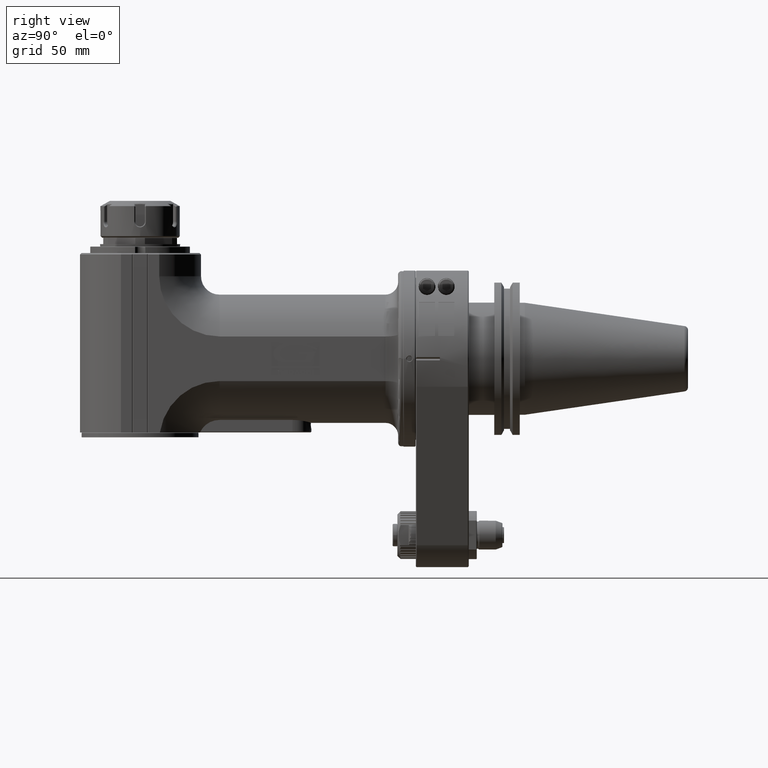
[diagram: clean part render]
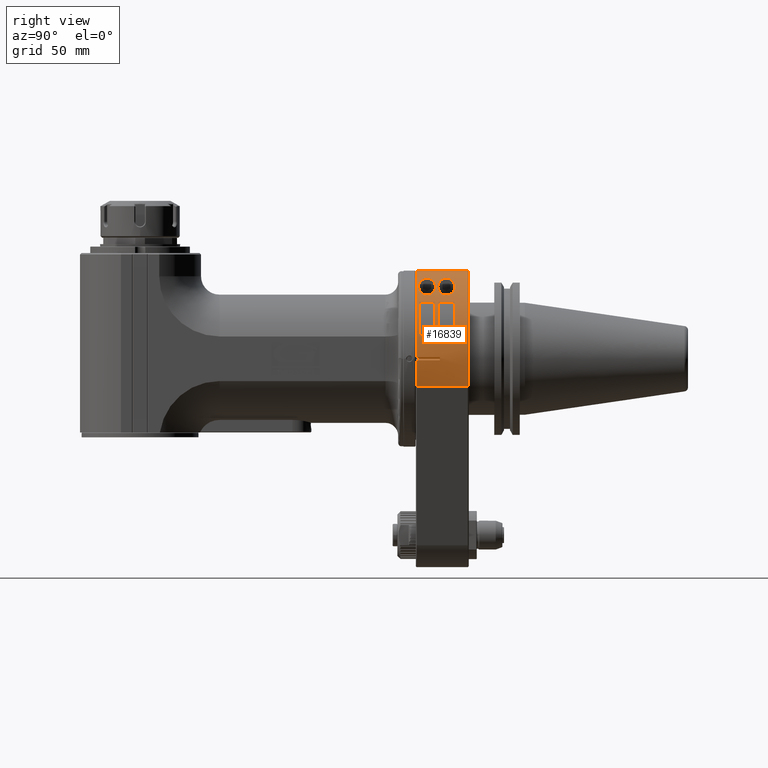
[diagram: same view with one face highlighted and labeled with its STEP entity id]
A machine part, right view. The second image highlights one B-rep face of the part: STEP entity #16839.
In plain terms, the highlighted cylindrical surface (partial cylindrical patch) has radius 55 mm, axis along (0, 1, 0).
Its self-contained STEP definition (entity closure, byte-faithful):
#538=FACE_BOUND('',#2800,.T.);
#539=FACE_BOUND('',#2801,.T.);
#540=FACE_BOUND('',#2802,.T.);
#541=FACE_BOUND('',#2803,.T.);
#1752=FACE_OUTER_BOUND('',#2799,.T.);
#2799=EDGE_LOOP('',(#14721,#14722,#14723,#14724,#14725,#14726,#14727,#14728));
#2800=EDGE_LOOP('',(#14729));
#2801=EDGE_LOOP('',(#14730,#14731));
#2802=EDGE_LOOP('',(#14732,#14733,#14734,#14735));
#2803=EDGE_LOOP('',(#14736,#14737,#14738,#14739));
#3294=B_SPLINE_CURVE_WITH_KNOTS('',3,(#31477,#31478,#31479,#31480,#31481,
#31482,#31483,#31484,#31485,#31486,#31487,#31488,#31489,#31490,#31491,#31492,
#31493,#31494,#31495,#31496,#31497,#31498,#31499,#31500,#31501,#31502,#31503,
#31504,#31505,#31506,#31507,#31508,#31509,#31510,#31511,#31512,#31513,#31514),
 .UNSPECIFIED.,.T.,.F.,(4,2,2,2,2,2,2,2,2,2,2,2,2,2,2,2,2,2,4),(0.,0.105821861626843,
0.211643723253686,0.423287446507373,0.825706096954147,1.22812474740092,
1.55606609285812,1.88400743831532,2.07571908295912,2.26743072760292,2.45914237224672,
2.65085401689052,2.97879536234772,3.30673670780492,3.70915535825169,4.11157400869847,
4.32321773195215,4.429039593579,4.53486145520584),.UNSPECIFIED.);
#3295=B_SPLINE_CURVE_WITH_KNOTS('',3,(#31517,#31518,#31519,#31520,#31521,
#31522,#31523,#31524,#31525,#31526,#31527,#31528,#31529,#31530,#31531,#31532,
#31533,#31534,#31535,#31536),.UNSPECIFIED.,.F.,.F.,(4,2,2,2,2,2,2,2,2,4),
(1.22812474740092,1.55606609285812,1.88400743831532,2.07571908295912,2.26743072760292,
2.37795822342875,2.48848571925458,2.70954071090624,3.00842289413588,3.30730507736551),
 .UNSPECIFIED.);
#3296=B_SPLINE_CURVE_WITH_KNOTS('',3,(#31537,#31538,#31539,#31540,#31541,
#31542,#31543,#31544,#31545,#31546,#31547,#31548,#31549,#31550,#31551,#31552,
#31553,#31554,#31555,#31556,#31557,#31558,#31559),.UNSPECIFIED.,.F.,.F.,
(4,2,2,2,2,3,2,2,2,2,4),(3.30730507736551,3.70972372781229,4.11214237825906,
4.32378610151275,4.42960796313959,4.53542982476643,4.64125168639328,4.74707354802012,
4.95871727127381,5.36113592172058,5.76355457216735),.UNSPECIFIED.);
#3826=CIRCLE('',#18202,55.);
#3828=CIRCLE('',#18207,55.);
#3972=CIRCLE('',#18508,55.);
#3973=CIRCLE('',#18510,55.);
#3974=CIRCLE('',#18511,55.);
#3975=CIRCLE('',#18512,55.);
#3976=CIRCLE('',#18513,55.);
#3977=CIRCLE('',#18514,55.);
#4861=LINE('',#29887,#6233);
#4865=LINE('',#29895,#6237);
#4870=LINE('',#29921,#6242);
#5083=LINE('',#31469,#6455);
#5085=LINE('',#31562,#6457);
#5086=LINE('',#31566,#6458);
#5087=LINE('',#31570,#6459);
#5088=LINE('',#31574,#6460);
#6233=VECTOR('',#21759,14.49972143808);
#6237=VECTOR('',#21765,14.4997213528);
#6242=VECTOR('',#21778,10.);
#6455=VECTOR('',#22585,31.99970247582);
#6457=VECTOR('',#22597,10.);
#6458=VECTOR('',#22600,10.);
#6459=VECTOR('',#22603,10.);
#6460=VECTOR('',#22606,10.);
#7961=VERTEX_POINT('',#29878);
#7962=VERTEX_POINT('',#29882);
#7963=VERTEX_POINT('',#29886);
#7965=VERTEX_POINT('',#29892);
#7966=VERTEX_POINT('',#29894);
#7967=VERTEX_POINT('',#29898);
#7974=VERTEX_POINT('',#29920);
#8222=VERTEX_POINT('',#31467);
#8223=VERTEX_POINT('',#31476);
#8224=VERTEX_POINT('',#31515);
#8225=VERTEX_POINT('',#31516);
#8226=VERTEX_POINT('',#31560);
#8227=VERTEX_POINT('',#31561);
#8228=VERTEX_POINT('',#31563);
#8229=VERTEX_POINT('',#31565);
#8230=VERTEX_POINT('',#31568);
#8231=VERTEX_POINT('',#31569);
#8232=VERTEX_POINT('',#31571);
#8233=VERTEX_POINT('',#31573);
#10063=EDGE_CURVE('',#7962,#7961,#3826,.T.);
#10064=EDGE_CURVE('',#7962,#7963,#4861,.T.);
#10068=EDGE_CURVE('',#7965,#7966,#4865,.T.);
#10070=EDGE_CURVE('',#7967,#7966,#3828,.T.);
#10078=EDGE_CURVE('',#7967,#7974,#4870,.T.);
#10478=EDGE_CURVE('',#8222,#7961,#5083,.T.);
#10480=EDGE_CURVE('',#8222,#7974,#3972,.T.);
#10481=EDGE_CURVE('',#7963,#7965,#3973,.T.);
#10482=EDGE_CURVE('',#8223,#8223,#3294,.T.);
#10483=EDGE_CURVE('',#8224,#8225,#3295,.T.);
#10484=EDGE_CURVE('',#8225,#8224,#3296,.T.);
#10485=EDGE_CURVE('',#8226,#8227,#5085,.T.);
#10486=EDGE_CURVE('',#8226,#8228,#3974,.T.);
#10487=EDGE_CURVE('',#8229,#8228,#5086,.T.);
#10488=EDGE_CURVE('',#8229,#8227,#3975,.T.);
#10489=EDGE_CURVE('',#8230,#8231,#5087,.T.);
#10490=EDGE_CURVE('',#8230,#8232,#3976,.T.);
#10491=EDGE_CURVE('',#8233,#8232,#5088,.T.);
#10492=EDGE_CURVE('',#8233,#8231,#3977,.T.);
#14721=ORIENTED_EDGE('',*,*,#10481,.F.);
#14722=ORIENTED_EDGE('',*,*,#10064,.F.);
#14723=ORIENTED_EDGE('',*,*,#10063,.T.);
#14724=ORIENTED_EDGE('',*,*,#10478,.F.);
#14725=ORIENTED_EDGE('',*,*,#10480,.T.);
#14726=ORIENTED_EDGE('',*,*,#10078,.F.);
#14727=ORIENTED_EDGE('',*,*,#10070,.T.);
#14728=ORIENTED_EDGE('',*,*,#10068,.F.);
#14729=ORIENTED_EDGE('',*,*,#10482,.F.);
#14730=ORIENTED_EDGE('',*,*,#10483,.F.);
#14731=ORIENTED_EDGE('',*,*,#10484,.F.);
#14732=ORIENTED_EDGE('',*,*,#10485,.F.);
#14733=ORIENTED_EDGE('',*,*,#10486,.T.);
#14734=ORIENTED_EDGE('',*,*,#10487,.F.);
#14735=ORIENTED_EDGE('',*,*,#10488,.T.);
#14736=ORIENTED_EDGE('',*,*,#10489,.F.);
#14737=ORIENTED_EDGE('',*,*,#10490,.T.);
#14738=ORIENTED_EDGE('',*,*,#10491,.F.);
#14739=ORIENTED_EDGE('',*,*,#10492,.T.);
#16082=CYLINDRICAL_SURFACE('',#18509,55.);
#16839=ADVANCED_FACE('',(#1752,#538,#539,#540,#541),#16082,.T.);
#18202=AXIS2_PLACEMENT_3D('',#29884,#21755,#21756);
#18207=AXIS2_PLACEMENT_3D('',#29899,#21770,#21771);
#18508=AXIS2_PLACEMENT_3D('',#31473,#22591,#22592);
#18509=AXIS2_PLACEMENT_3D('',#31474,#22593,#22594);
#18510=AXIS2_PLACEMENT_3D('',#31475,#22595,#22596);
#18511=AXIS2_PLACEMENT_3D('',#31564,#22598,#22599);
#18512=AXIS2_PLACEMENT_3D('',#31567,#22601,#22602);
#18513=AXIS2_PLACEMENT_3D('',#31572,#22604,#22605);
#18514=AXIS2_PLACEMENT_3D('',#31575,#22607,#22608);
#21755=DIRECTION('center_axis',(0.,1.,0.));
#21756=DIRECTION('ref_axis',(0.999837636446488,0.,-0.0180194546282698));
#21759=DIRECTION('',(-8.56568373194599E-10,0.999999999999999,-4.75292359633099E-8));
#21765=DIRECTION('',(9.07788713136399E-10,-0.999999999999999,-5.03707369686699E-8));
#21770=DIRECTION('center_axis',(0.,1.,0.));
#21771=DIRECTION('ref_axis',(0.0136363636363499,0.,0.999907020470792));
#21778=DIRECTION('',(0.,1.,0.));
#22585=DIRECTION('',(2.59639170568E-12,-1.,7.462655489638E-12));
#22591=DIRECTION('center_axis',(0.,-1.,0.));
#22592=DIRECTION('ref_axis',(1.,0.,0.));
#22593=DIRECTION('center_axis',(0.,1.,0.));
#22594=DIRECTION('ref_axis',(1.,0.,0.));
#22595=DIRECTION('center_axis',(0.,-1.,0.));
#22596=DIRECTION('ref_axis',(0.999837636446487,0.,-0.0180194546283098));
#22597=DIRECTION('',(-8.810729923425E-14,-1.,1.222133505507E-13));
#22598=DIRECTION('center_axis',(0.,1.,0.));
#22599=DIRECTION('ref_axis',(0.766044443119006,0.,0.642787609686505));
#22600=DIRECTION('',(-1.136868377216E-14,1.,3.339550858072E-14));
#22601=DIRECTION('center_axis',(0.,-1.,0.));
#22602=DIRECTION('ref_axis',(0.965925826289076,0.,0.258819045102493));
#22603=DIRECTION('',(-8.810729923425E-14,-1.,1.222133505507E-13));
#22604=DIRECTION('center_axis',(0.,1.,0.));
#22605=DIRECTION('ref_axis',(0.766044443119006,0.,0.642787609686505));
#22606=DIRECTION('',(-1.136868377216E-14,1.,3.339550858072E-14));
#22607=DIRECTION('center_axis',(0.,-1.,0.));
#22608=DIRECTION('ref_axis',(0.965925826289076,0.,0.258819045102493));
#29878=CARTESIAN_POINT('',(52.1416341620324,0.500138933817863,-17.5000001003784));
#29882=CARTESIAN_POINT('',(54.9910700909966,0.500277245197752,-0.991069075927948));
#29884=CARTESIAN_POINT('Origin',(4.920508545139E-13,0.5002771391639,-1.678213114023E-12));
#29886=CARTESIAN_POINT('',(54.99107000456,15.,-0.9910700045573));
#29887=CARTESIAN_POINT('',(54.99107001698,0.5002785619182,-0.9910693153966));
#29892=CARTESIAN_POINT('',(54.99107000456,15.,0.9910700045563));
#29894=CARTESIAN_POINT('',(54.9910700961727,0.500277251555299,0.99106902037729));
#29895=CARTESIAN_POINT('',(54.99107000456,15.,0.9910700045563));
#29898=CARTESIAN_POINT('',(0.750000000005562,0.500277138472551,54.9948861256036));
#29899=CARTESIAN_POINT('Origin',(4.920508545139E-13,0.5002771391664,-1.678213114023E-12));
#29920=CARTESIAN_POINT('',(0.750000000005542,32.4997226611726,54.9948861256085));
#29921=CARTESIAN_POINT('',(0.75,0.,54.9948861258936));
#31467=CARTESIAN_POINT('',(52.1416341619608,32.4998609659846,-17.5000001006213));
#31469=CARTESIAN_POINT('',(52.14163401876,32.4998511875,-17.50000005256));
#31473=CARTESIAN_POINT('Origin',(-3.508304657815E-13,32.49972266047,1.389999326831E-13));
#31474=CARTESIAN_POINT('Origin',(0.,0.,0.));
#31475=CARTESIAN_POINT('Origin',(0.,15.,0.));
#31476=CARTESIAN_POINT('',(31.62277660168,12.25,45.));
#31477=CARTESIAN_POINT('Ctrl Pts',(22.359282188836,7.,50.25));
#31478=CARTESIAN_POINT('Ctrl Pts',(22.359282188836,6.64726046124386,50.25));
#31479=CARTESIAN_POINT('Ctrl Pts',(22.4381099921895,6.31880227440667,50.2150570528148));
#31480=CARTESIAN_POINT('Ctrl Pts',(22.7007375870288,5.70281894533053,50.0968786239534));
#31481=CARTESIAN_POINT('Ctrl Pts',(22.8850282674696,5.41556399196847,50.0133266097513));
#31482=CARTESIAN_POINT('Ctrl Pts',(23.5370638105094,4.61472949587357,49.7115285158905));
#31483=CARTESIAN_POINT('Ctrl Pts',(24.1028469148803,4.16443208848012,49.4411114963015));
#31484=CARTESIAN_POINT('Ctrl Pts',(25.6821344667263,3.13060078338722,48.6494428766399));
#31485=CARTESIAN_POINT('Ctrl Pts',(26.8839711623068,2.61985033648001,48.0024407536036));
#31486=CARTESIAN_POINT('Ctrl Pts',(29.3047316823218,1.9251641119243,46.5640949376125));
#31487=CARTESIAN_POINT('Ctrl Pts',(30.5252711913744,1.75,45.7712481868745));
#31488=CARTESIAN_POINT('Ctrl Pts',(32.5171620892943,1.75,44.3714899451001));
#31489=CARTESIAN_POINT('Ctrl Pts',(33.4716036859161,1.86719249710401,43.6569282909293));
#31490=CARTESIAN_POINT('Ctrl Pts',(35.2356449795447,2.46512701854205,42.2460051911268));
#31491=CARTESIAN_POINT('Ctrl Pts',(36.0461294372384,2.9442867896724,41.5500800128852));
#31492=CARTESIAN_POINT('Ctrl Pts',(37.056662342531,4.02175502352768,40.6454688574234));
#31493=CARTESIAN_POINT('Ctrl Pts',(37.4051541536747,4.53377679096085,40.3232185821916));
#31494=CARTESIAN_POINT('Ctrl Pts',(37.8832559421395,5.70284893103058,39.8743830355923));
#31495=CARTESIAN_POINT('Ctrl Pts',(38.0123335247917,6.36096118452067,39.75));
#31496=CARTESIAN_POINT('Ctrl Pts',(38.0123335247917,7.63903881547933,39.75));
#31497=CARTESIAN_POINT('Ctrl Pts',(37.8832559421395,8.29715106896942,39.8743830355923));
#31498=CARTESIAN_POINT('Ctrl Pts',(37.4051541536747,9.46622320903915,40.3232185821916));
#31499=CARTESIAN_POINT('Ctrl Pts',(37.056662342531,9.97824497647232,40.6454688574234));
#31500=CARTESIAN_POINT('Ctrl Pts',(36.0461294372384,11.0557132103276,41.5500800128852));
#31501=CARTESIAN_POINT('Ctrl Pts',(35.2356449795447,11.534872981458,42.2460051911268));
#31502=CARTESIAN_POINT('Ctrl Pts',(33.4716036859161,12.132807502896,43.6569282909293));
#31503=CARTESIAN_POINT('Ctrl Pts',(32.5171620892943,12.25,44.3714899451001));
#31504=CARTESIAN_POINT('Ctrl Pts',(30.5252711913744,12.25,45.7712481868745));
#31505=CARTESIAN_POINT('Ctrl Pts',(29.3047316823218,12.0748358880757,46.5640949376125));
#31506=CARTESIAN_POINT('Ctrl Pts',(26.8839711623068,11.38014966352,48.0024407536036));
#31507=CARTESIAN_POINT('Ctrl Pts',(25.6821344667263,10.8693992166128,48.6494428766399));
#31508=CARTESIAN_POINT('Ctrl Pts',(24.1028469148803,9.83556791151988,49.4411114963015));
#31509=CARTESIAN_POINT('Ctrl Pts',(23.5370638105093,9.38527050412644,49.7115285158905));
#31510=CARTESIAN_POINT('Ctrl Pts',(22.8850282674696,8.58443600803154,50.0133266097513));
#31511=CARTESIAN_POINT('Ctrl Pts',(22.7007375870289,8.29718105466945,50.0968786239534));
#31512=CARTESIAN_POINT('Ctrl Pts',(22.4381099921895,7.68119772559331,50.2150570528148));
#31513=CARTESIAN_POINT('Ctrl Pts',(22.359282188836,7.35273953875614,50.25));
#31514=CARTESIAN_POINT('Ctrl Pts',(22.359282188836,7.,50.25));
#31515=CARTESIAN_POINT('',(31.62277660168,13.75,45.));
#31516=CARTESIAN_POINT('',(31.6227766016838,24.25,45.));
#31517=CARTESIAN_POINT('Ctrl Pts',(31.6227766016838,13.75,45.));
#31518=CARTESIAN_POINT('Ctrl Pts',(32.5171620892943,13.75,44.3714899451001));
#31519=CARTESIAN_POINT('Ctrl Pts',(33.4716036859161,13.867192497104,43.6569282909293));
#31520=CARTESIAN_POINT('Ctrl Pts',(35.2356449795447,14.465127018542,42.2460051911268));
#31521=CARTESIAN_POINT('Ctrl Pts',(36.0461294372384,14.9442867896724,41.5500800128852));
#31522=CARTESIAN_POINT('Ctrl Pts',(37.056662342531,16.0217550235277,40.6454688574234));
#31523=CARTESIAN_POINT('Ctrl Pts',(37.4051541536747,16.5337767909609,40.3232185821916));
#31524=CARTESIAN_POINT('Ctrl Pts',(37.8832559421395,17.7028489310306,39.8743830355923));
#31525=CARTESIAN_POINT('Ctrl Pts',(38.0123335247917,18.3609611845207,39.75));
#31526=CARTESIAN_POINT('Ctrl Pts',(38.0123335247917,19.3684249860861,39.75));
#31527=CARTESIAN_POINT('Ctrl Pts',(37.9712869988568,19.7386473676736,39.7893661500424));
#31528=CARTESIAN_POINT('Ctrl Pts',(37.8105442937832,20.4541041827388,39.9421461016003));
#31529=CARTESIAN_POINT('Ctrl Pts',(37.6908407615871,20.7993482499394,40.0555070480252));
#31530=CARTESIAN_POINT('Ctrl Pts',(37.235508078841,21.7624861983674,40.4807294278944));
#31531=CARTESIAN_POINT('Ctrl Pts',(36.7978178643462,22.3061399327106,40.8815187302518));
#31532=CARTESIAN_POINT('Ctrl Pts',(35.71229499596,23.2614824397103,41.8368612372516));
#31533=CARTESIAN_POINT('Ctrl Pts',(34.9480846551228,23.6586206131069,42.4820070840882));
#31534=CARTESIAN_POINT('Ctrl Pts',(33.3110132030859,24.152516379099,43.7774594084858));
#31535=CARTESIAN_POINT('Ctrl Pts',(32.4379098286737,24.25,44.4271827569397));
#31536=CARTESIAN_POINT('Ctrl Pts',(31.6227766016838,24.25,45.));
#31537=CARTESIAN_POINT('Ctrl Pts',(31.6227766016838,24.25,45.));
#31538=CARTESIAN_POINT('Ctrl Pts',(30.5252711913744,24.25,45.7712481868745));
#31539=CARTESIAN_POINT('Ctrl Pts',(29.3047316823218,24.0748358880757,46.5640949376125));
#31540=CARTESIAN_POINT('Ctrl Pts',(26.8839711623068,23.38014966352,48.0024407536036));
#31541=CARTESIAN_POINT('Ctrl Pts',(25.6821344667263,22.8693992166128,48.6494428766399));
#31542=CARTESIAN_POINT('Ctrl Pts',(24.1028469148803,21.8355679115199,49.4411114963015));
#31543=CARTESIAN_POINT('Ctrl Pts',(23.5370638105094,21.3852705041264,49.7115285158905));
#31544=CARTESIAN_POINT('Ctrl Pts',(22.8850282674696,20.5844360080315,50.0133266097513));
#31545=CARTESIAN_POINT('Ctrl Pts',(22.7007375870288,20.2971810546695,50.0968786239534));
#31546=CARTESIAN_POINT('Ctrl Pts',(22.4381099921895,19.6811977255933,50.2150570528148));
#31547=CARTESIAN_POINT('Ctrl Pts',(22.359282188836,19.3527395387561,50.25));
#31548=CARTESIAN_POINT('Ctrl Pts',(22.359282188836,19.,50.25));
#31549=CARTESIAN_POINT('Ctrl Pts',(22.359282188836,18.6472604612439,50.25));
#31550=CARTESIAN_POINT('Ctrl Pts',(22.4381099921895,18.3188022744067,50.2150570528148));
#31551=CARTESIAN_POINT('Ctrl Pts',(22.7007375870288,17.7028189453305,50.0968786239534));
#31552=CARTESIAN_POINT('Ctrl Pts',(22.8850282674696,17.4155639919685,50.0133266097513));
#31553=CARTESIAN_POINT('Ctrl Pts',(23.5370638105094,16.6147294958736,49.7115285158905));
#31554=CARTESIAN_POINT('Ctrl Pts',(24.1028469148803,16.1644320884801,49.4411114963015));
#31555=CARTESIAN_POINT('Ctrl Pts',(25.6821344667263,15.1306007833872,48.6494428766399));
#31556=CARTESIAN_POINT('Ctrl Pts',(26.8839711623068,14.61985033648,48.0024407536036));
#31557=CARTESIAN_POINT('Ctrl Pts',(29.3047316823218,13.9251641119243,46.5640949376125));
#31558=CARTESIAN_POINT('Ctrl Pts',(30.5252711913744,13.75,45.7712481868745));
#31559=CARTESIAN_POINT('Ctrl Pts',(31.6227766016838,13.75,45.));
#31560=CARTESIAN_POINT('',(42.13244437154,12.,35.35331853276));
#31561=CARTESIAN_POINT('',(42.13244437154,2.,35.35331853276));
#31562=CARTESIAN_POINT('',(42.13244437154,12.,35.35331853276));
#31563=CARTESIAN_POINT('',(53.1259204459,12.,14.23504748064));
#31564=CARTESIAN_POINT('Origin',(0.,12.,0.));
#31565=CARTESIAN_POINT('',(53.1259204459,2.,14.23504748064));
#31566=CARTESIAN_POINT('',(53.1259204459,2.,14.23504748064));
#31567=CARTESIAN_POINT('Origin',(0.,2.,0.));
#31568=CARTESIAN_POINT('',(42.13244437154,24.,35.35331853276));
#31569=CARTESIAN_POINT('',(42.13244437154,14.,35.35331853276));
#31570=CARTESIAN_POINT('',(42.13244437154,24.,35.35331853276));
#31571=CARTESIAN_POINT('',(53.1259204459,24.,14.23504748064));
#31572=CARTESIAN_POINT('Origin',(0.,24.,0.));
#31573=CARTESIAN_POINT('',(53.1259204459,14.,14.23504748064));
#31574=CARTESIAN_POINT('',(53.1259204459,14.,14.23504748064));
#31575=CARTESIAN_POINT('Origin',(0.,14.,0.));